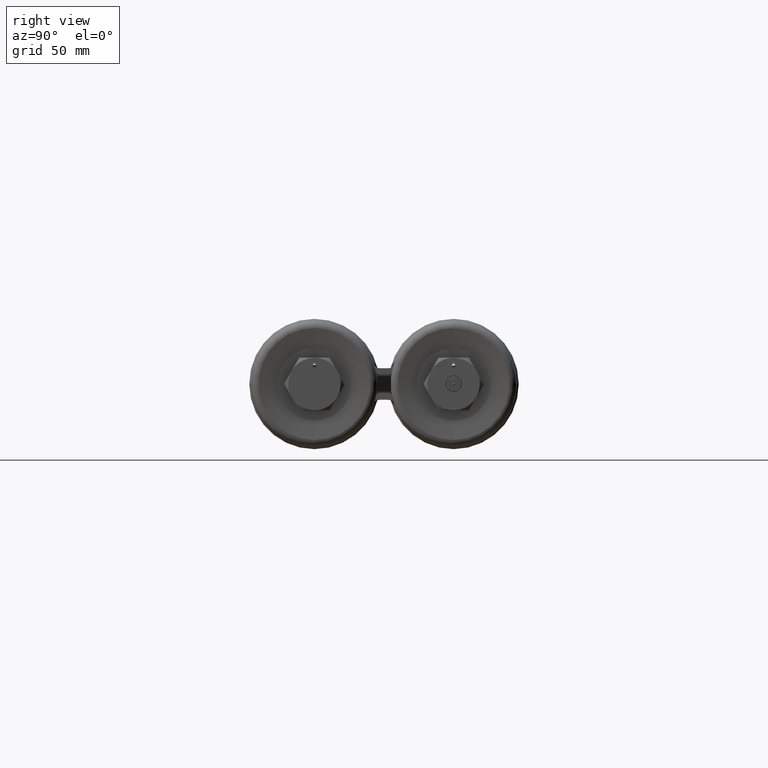
[diagram: clean part render]
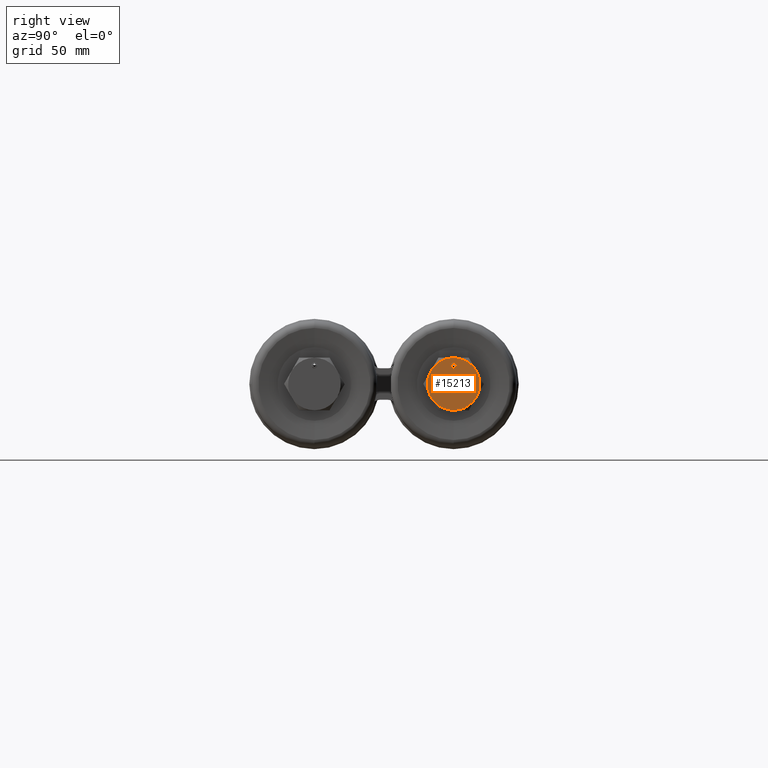
[diagram: same view with one face highlighted and labeled with its STEP entity id]
A machine part, right view. The second image highlights one B-rep face of the part: STEP entity #15213.
In plain terms, the highlighted planar face has unit normal (-1, 0, -0).
Its self-contained STEP definition (entity closure, byte-faithful):
#10 = CARTESIAN_POINT ( 'NONE',  ( 15.51050000000016382, 2.770734122633902174, -0.3124999999995919375 ) ) ;
#231 = DIRECTION ( 'NONE',  ( 0.000000000000000000, 0.000000000000000000, 1.000000000000000000 ) ) ;
#389 = EDGE_CURVE ( 'NONE', #5486, #13926, #12394, .T. ) ;
#1478 = CARTESIAN_POINT ( 'NONE',  ( 15.51050000000000040, 3.311999999999982514, 8.735893185695312704E-13 ) ) ;
#1977 = DIRECTION ( 'NONE',  ( 0.000000000000000000, 0.000000000000000000, 1.000000000000000000 ) ) ;
#2085 = CIRCLE ( 'NONE', #37253, 0.6250000000012133627 ) ;
#2275 = CIRCLE ( 'NONE', #21722, 0.6250000000006488143 ) ;
#2323 = DIRECTION ( 'NONE',  ( 0.000000000000000000, 0.000000000000000000, 1.000000000000000000 ) ) ;
#2419 = AXIS2_PLACEMENT_3D ( 'NONE', #12542, #18246, #20779 ) ;
#2735 = CARTESIAN_POINT ( 'NONE',  ( 15.51050000000049067, 3.853265877365573910, 0.3125000000010569878 ) ) ;
#4070 = AXIS2_PLACEMENT_3D ( 'NONE', #18318, #8863, #11462 ) ;
#4395 = DIRECTION ( 'NONE',  ( -1.000000000000000000, 0.000000000000000000, -0.000000000000000000 ) ) ;
#4996 = EDGE_CURVE ( 'NONE', #19353, #18344, #22715, .T. ) ;
#5486 = VERTEX_POINT ( 'NONE', #10 ) ;
#5766 = CARTESIAN_POINT ( 'NONE',  ( 15.51050000000032547, 3.311999999999982514, 3.091216937232025772E-13 ) ) ;
#7101 = CARTESIAN_POINT ( 'NONE',  ( 15.51050000000000040, 3.311999999999982514, 1.235267706538066744E-13 ) ) ;
#8384 = VERTEX_POINT ( 'NONE', #20084 ) ;
#8423 = AXIS2_PLACEMENT_3D ( 'NONE', #9262, #24334, #231 ) ;
#8826 = ORIENTED_EDGE ( 'NONE', *, *, #30151, .F. ) ;
#8863 = DIRECTION ( 'NONE',  ( -1.000000000000000000, 0.000000000000000000, -0.000000000000000000 ) ) ;
#9253 = CARTESIAN_POINT ( 'NONE',  ( 15.51050000000000040, 3.311999999999982514, -0.1954999999998764948 ) ) ;
#9262 = CARTESIAN_POINT ( 'NONE',  ( 15.51050000000000040, 3.311999999999964750, 0.4380000000000001670 ) ) ;
#9617 = VERTEX_POINT ( 'NONE', #31315 ) ;
#10302 = CIRCLE ( 'NONE', #8423, 0.06324999999999993128 ) ;
#11462 = DIRECTION ( 'NONE',  ( 0.000000000000000000, 0.000000000000000000, 1.000000000000000000 ) ) ;
#12394 = CIRCLE ( 'NONE', #34216, 0.6250000000012133627 ) ;
#12542 = CARTESIAN_POINT ( 'NONE',  ( 15.51050000000000040, 2.951156081756486138, 0.6250000000001230127 ) ) ;
#13461 = DIRECTION ( 'NONE',  ( 0.000000000000000000, 0.000000000000000000, 1.000000000000000000 ) ) ;
#13588 = PLANE ( 'NONE',  #2419 ) ;
#13926 = VERTEX_POINT ( 'NONE', #17187 ) ;
#14400 = DIRECTION ( 'NONE',  ( 1.000000000000000000, -0.000000000000000000, 0.000000000000000000 ) ) ;
#15213 = ADVANCED_FACE ( 'NONE', ( #28464, #28856, #29587 ), #13588, .F. ) ;
#16412 = AXIS2_PLACEMENT_3D ( 'NONE', #7101, #19862, #1977 ) ;
#17063 = DIRECTION ( 'NONE',  ( -1.000000000000000000, 0.000000000000000000, -0.000000000000000000 ) ) ;
#17176 = EDGE_CURVE ( 'NONE', #32359, #35796, #33291, .T. ) ;
#17187 = CARTESIAN_POINT ( 'NONE',  ( 15.51050000000049067, 2.770734122634391117, 0.3125000000010568213 ) ) ;
#17270 = CARTESIAN_POINT ( 'NONE',  ( 15.51050000000000040, 3.311999999999982514, 8.735893185695312704E-13 ) ) ;
#17501 = ORIENTED_EDGE ( 'NONE', *, *, #389, .F. ) ;
#17753 = DIRECTION ( 'NONE',  ( 5.210180493511074254E-13, 0.000000000000000000, 1.000000000000000000 ) ) ;
#18246 = DIRECTION ( 'NONE',  ( -1.000000000000000000, 0.000000000000000000, -0.000000000000000000 ) ) ;
#18318 = CARTESIAN_POINT ( 'NONE',  ( 15.51050000000000040, 3.311999999999982514, 8.735893185695312704E-13 ) ) ;
#18344 = VERTEX_POINT ( 'NONE', #38006 ) ;
#19353 = VERTEX_POINT ( 'NONE', #26254 ) ;
#19563 = DIRECTION ( 'NONE',  ( 0.000000000000000000, 0.000000000000000000, 1.000000000000000000 ) ) ;
#19862 = DIRECTION ( 'NONE',  ( -1.000000000000000000, 0.000000000000000000, 0.000000000000000000 ) ) ;
#19912 = CARTESIAN_POINT ( 'NONE',  ( 15.51050000000000040, 3.311999999999982514, 8.735893185695312704E-13 ) ) ;
#19915 = ORIENTED_EDGE ( 'NONE', *, *, #26487, .F. ) ;
#20084 = CARTESIAN_POINT ( 'NONE',  ( 15.51050000000000040, 3.311999999999982514, -0.6250000000003397282 ) ) ;
#20197 = CARTESIAN_POINT ( 'NONE',  ( 15.51050000000000040, 3.311999999999982514, 8.735893185695312704E-13 ) ) ;
#20779 = DIRECTION ( 'NONE',  ( -0.000000000000000000, 0.000000000000000000, 1.000000000000000000 ) ) ;
#20805 = DIRECTION ( 'NONE',  ( -1.000000000000000000, 0.000000000000000000, -0.000000000000000000 ) ) ;
#21070 = VERTEX_POINT ( 'NONE', #2735 ) ;
#21722 = AXIS2_PLACEMENT_3D ( 'NONE', #5766, #35542, #17753 ) ;
#22715 = CIRCLE ( 'NONE', #35226, 0.06324999999999993128 ) ;
#23066 = EDGE_LOOP ( 'NONE', ( #27256, #38724 ) ) ;
#23596 = DIRECTION ( 'NONE',  ( -1.000000000000000000, 0.000000000000000000, 0.000000000000000000 ) ) ;
#23643 = EDGE_LOOP ( 'NONE', ( #34182, #33988 ) ) ;
#24334 = DIRECTION ( 'NONE',  ( 1.000000000000000000, -0.000000000000000000, 0.000000000000000000 ) ) ;
#24404 = CIRCLE ( 'NONE', #29444, 0.6250000000012133627 ) ;
#25256 = EDGE_CURVE ( 'NONE', #21070, #35703, #34006, .T. ) ;
#25511 = EDGE_CURVE ( 'NONE', #18344, #19353, #10302, .T. ) ;
#25527 = ORIENTED_EDGE ( 'NONE', *, *, #25256, .F. ) ;
#25655 = CARTESIAN_POINT ( 'NONE',  ( 15.51050000000000040, 3.311999999999982514, 0.1955000000001235194 ) ) ;
#26254 = CARTESIAN_POINT ( 'NONE',  ( 15.51050000000000040, 3.311999999999964750, 0.3747500000000001941 ) ) ;
#26487 = EDGE_CURVE ( 'NONE', #8384, #5486, #37284, .T. ) ;
#26938 = DIRECTION ( 'NONE',  ( 0.000000000000000000, 0.000000000000000000, 1.000000000000000000 ) ) ;
#27256 = ORIENTED_EDGE ( 'NONE', *, *, #31917, .T. ) ;
#27992 = CARTESIAN_POINT ( 'NONE',  ( 15.51050000000000040, 3.311999999999982514, 1.235267706538066744E-13 ) ) ;
#28464 = FACE_BOUND ( 'NONE', #23643, .T. ) ;
#28856 = FACE_BOUND ( 'NONE', #23066, .T. ) ;
#29055 = AXIS2_PLACEMENT_3D ( 'NONE', #1478, #34392, #19563 ) ;
#29291 = DIRECTION ( 'NONE',  ( 0.000000000000000000, 0.000000000000000000, 1.000000000000000000 ) ) ;
#29444 = AXIS2_PLACEMENT_3D ( 'NONE', #19912, #4395, #13461 ) ;
#29587 = FACE_OUTER_BOUND ( 'NONE', #37242, .T. ) ;
#30151 = EDGE_CURVE ( 'NONE', #35703, #8384, #24404, .T. ) ;
#30233 = EDGE_CURVE ( 'NONE', #9617, #21070, #2275, .T. ) ;
#31246 = CIRCLE ( 'NONE', #35634, 0.1955000000000000071 ) ;
#31315 = CARTESIAN_POINT ( 'NONE',  ( 15.51050000000065232, 3.311999999999982514, 0.6250000000009579004 ) ) ;
#31604 = CARTESIAN_POINT ( 'NONE',  ( 15.51050000000000040, 3.311999999999964750, 0.4380000000000001670 ) ) ;
#31917 = EDGE_CURVE ( 'NONE', #35796, #32359, #31246, .T. ) ;
#32359 = VERTEX_POINT ( 'NONE', #9253 ) ;
#32728 = DIRECTION ( 'NONE',  ( 0.000000000000000000, 0.000000000000000000, 1.000000000000000000 ) ) ;
#33291 = CIRCLE ( 'NONE', #16412, 0.1955000000000000071 ) ;
#33988 = ORIENTED_EDGE ( 'NONE', *, *, #4996, .F. ) ;
#34006 = CIRCLE ( 'NONE', #29055, 0.6250000000012133627 ) ;
#34182 = ORIENTED_EDGE ( 'NONE', *, *, #25511, .F. ) ;
#34216 = AXIS2_PLACEMENT_3D ( 'NONE', #17270, #20805, #32728 ) ;
#34392 = DIRECTION ( 'NONE',  ( -1.000000000000000000, 0.000000000000000000, -0.000000000000000000 ) ) ;
#34636 = CARTESIAN_POINT ( 'NONE',  ( 15.51050000000016382, 3.853265877366063297, -0.3124999999995921041 ) ) ;
#35226 = AXIS2_PLACEMENT_3D ( 'NONE', #31604, #14400, #29291 ) ;
#35542 = DIRECTION ( 'NONE',  ( -1.000000000000000000, -0.000000000000000000, 5.214328562443665118E-13 ) ) ;
#35634 = AXIS2_PLACEMENT_3D ( 'NONE', #27992, #23596, #26938 ) ;
#35703 = VERTEX_POINT ( 'NONE', #34636 ) ;
#35796 = VERTEX_POINT ( 'NONE', #25655 ) ;
#36399 = EDGE_CURVE ( 'NONE', #13926, #9617, #2085, .T. ) ;
#37242 = EDGE_LOOP ( 'NONE', ( #38183, #38424, #17501, #19915, #8826, #25527 ) ) ;
#37253 = AXIS2_PLACEMENT_3D ( 'NONE', #20197, #17063, #2323 ) ;
#37284 = CIRCLE ( 'NONE', #4070, 0.6250000000012133627 ) ;
#38006 = CARTESIAN_POINT ( 'NONE',  ( 15.51050000000000040, 3.311999999999964750, 0.5012500000000000844 ) ) ;
#38183 = ORIENTED_EDGE ( 'NONE', *, *, #30233, .F. ) ;
#38424 = ORIENTED_EDGE ( 'NONE', *, *, #36399, .F. ) ;
#38724 = ORIENTED_EDGE ( 'NONE', *, *, #17176, .T. ) ;